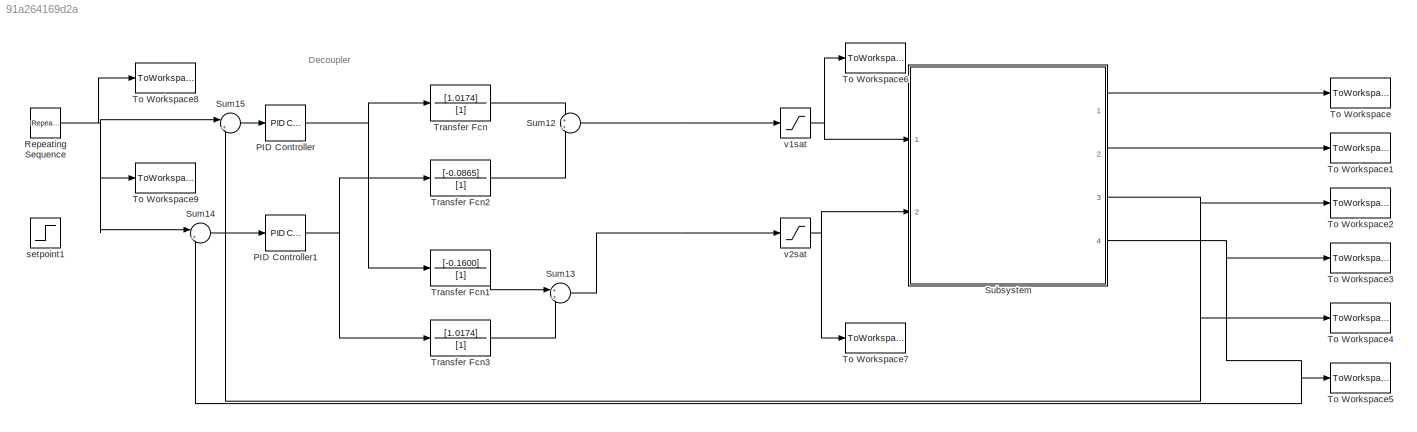
MODEL slx_91a264169d2a
KIND model
CONFIG AbsTol = auto
CONFIG FixedStep = 0.0005
CONFIG MaxStep = auto
CONFIG MinStep = auto
CONFIG RelTol = 1e-3
CONFIG SampleTimeConstraint = Unconstrained
CONFIG Solver = FixedStepAuto
CONFIG SolverMode = Auto
CONFIG SolverName = FixedStepAuto
CONFIG StartTime = 0.0
CONFIG StopTime = 300
BLOCK [Reference] PID Controller  REF=simulink/Continuous/PID Controller
  Ports = [1, 1]
  SourceBlock = simulink/Continuous/PID Controller
  SourceType = PID 1dof
BLOCK [Reference] PID Controller1  REF=simulink/Continuous/PID Controller
  Ports = [1, 1]
  SourceBlock = simulink/Continuous/PID Controller
  SourceType = PID 1dof
BLOCK [Reference] Repeating Sequence  REF=simulink/Sources/Repeating
Sequence
  Ports = [0, 1]
  SourceBlock = simulink/Sources/Repeating\nSequence
  SourceType = Repeating table
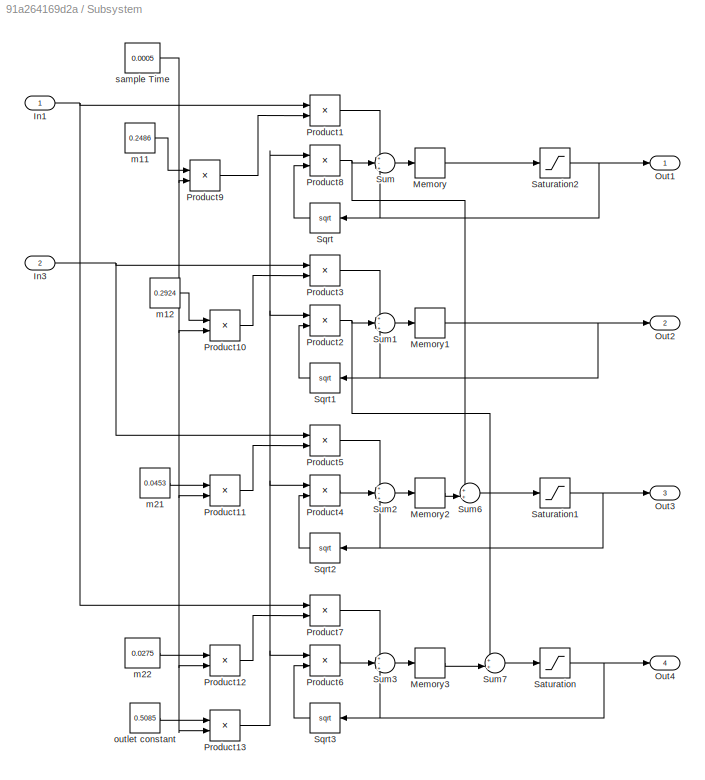
BLOCK [SubSystem] Subsystem
  Ports = [2, 4]
  RequestExecContextInheritance = off
  Variant = off
BLOCK [Inport] Subsystem/In1
  IconDisplay = Port number
BLOCK [Inport] Subsystem/In3
  IconDisplay = Port number
  Port = 2
BLOCK [Memory] Subsystem/Memory
BLOCK [Memory] Subsystem/Memory1
BLOCK [Memory] Subsystem/Memory2
BLOCK [Memory] Subsystem/Memory3
BLOCK [Outport] Subsystem/Out1
  IconDisplay = Port number
BLOCK [Outport] Subsystem/Out2
  IconDisplay = Port number
  Port = 2
BLOCK [Outport] Subsystem/Out3
  IconDisplay = Port number
  Port = 3
BLOCK [Outport] Subsystem/Out4
  IconDisplay = Port number
  Port = 4
BLOCK [Product] Subsystem/Product1
  InputSameDT = off
  OutDataTypeStr = Inherit: Inherit via internal rule
  Ports = [2, 1]
  RndMeth = Floor
  SaturateOnIntegerOverflow = off
BLOCK [Product] Subsystem/Product10
  InputSameDT = off
  OutDataTypeStr = Inherit: Inherit via internal rule
  Ports = [2, 1]
  RndMeth = Floor
  SaturateOnIntegerOverflow = off
BLOCK [Product] Subsystem/Product11
  InputSameDT = off
  OutDataTypeStr = Inherit: Inherit via internal rule
  Ports = [2, 1]
  RndMeth = Floor
  SaturateOnIntegerOverflow = off
BLOCK [Product] Subsystem/Product12
  InputSameDT = off
  OutDataTypeStr = Inherit: Inherit via internal rule
  Ports = [2, 1]
  RndMeth = Floor
  SaturateOnIntegerOverflow = off
BLOCK [Product] Subsystem/Product13
  InputSameDT = off
  OutDataTypeStr = Inherit: Inherit via internal rule
  Ports = [2, 1]
  RndMeth = Floor
  SaturateOnIntegerOverflow = off
BLOCK [Product] Subsystem/Product2
  InputSameDT = off
  OutDataTypeStr = Inherit: Inherit via internal rule
  Ports = [2, 1]
  RndMeth = Floor
  SaturateOnIntegerOverflow = off
BLOCK [Product] Subsystem/Product3
  InputSameDT = off
  OutDataTypeStr = Inherit: Inherit via internal rule
  Ports = [2, 1]
  RndMeth = Floor
  SaturateOnIntegerOverflow = off
BLOCK [Product] Subsystem/Product4
  InputSameDT = off
  OutDataTypeStr = Inherit: Inherit via internal rule
  Ports = [2, 1]
  RndMeth = Floor
  SaturateOnIntegerOverflow = off
BLOCK [Product] Subsystem/Product5
  InputSameDT = off
  OutDataTypeStr = Inherit: Inherit via internal rule
  Ports = [2, 1]
  RndMeth = Floor
  SaturateOnIntegerOverflow = off
BLOCK [Product] Subsystem/Product6
  InputSameDT = off
  OutDataTypeStr = Inherit: Inherit via internal rule
  Ports = [2, 1]
  RndMeth = Floor
  SaturateOnIntegerOverflow = off
BLOCK [Product] Subsystem/Product7
  InputSameDT = off
  OutDataTypeStr = Inherit: Inherit via internal rule
  Ports = [2, 1]
  RndMeth = Floor
  SaturateOnIntegerOverflow = off
BLOCK [Product] Subsystem/Product8
  InputSameDT = off
  OutDataTypeStr = Inherit: Inherit via internal rule
  Ports = [2, 1]
  RndMeth = Floor
  SaturateOnIntegerOverflow = off
BLOCK [Product] Subsystem/Product9
  InputSameDT = off
  OutDataTypeStr = Inherit: Inherit via internal rule
  Ports = [2, 1]
  RndMeth = Floor
  SaturateOnIntegerOverflow = off
BLOCK [Saturate] Subsystem/Saturation
  InputPortMap = u0
  LowerLimit = 0
  Ports = [1, 1]
  UpperLimit = 30
BLOCK [Saturate] Subsystem/Saturation1
  InputPortMap = u0
  LowerLimit = 0
  Ports = [1, 1]
  UpperLimit = 30
BLOCK [Saturate] Subsystem/Saturation2
  InputPortMap = u0
  LowerLimit = 0
  Ports = [1, 1]
  UpperLimit = 30
BLOCK [Sqrt] Subsystem/Sqrt
BLOCK [Sqrt] Subsystem/Sqrt1
BLOCK [Sqrt] Subsystem/Sqrt2
BLOCK [Sqrt] Subsystem/Sqrt3
BLOCK [Sum] Subsystem/Sum
  IconShape = round
  InputSameDT = off
  Inputs = +-+
  OutDataTypeStr = Inherit: Inherit via internal rule
  Ports = [3, 1]
  SaturateOnIntegerOverflow = off
BLOCK [Sum] Subsystem/Sum1
  IconShape = round
  InputSameDT = off
  Inputs = +-+
  OutDataTypeStr = Inherit: Inherit via internal rule
  Ports = [3, 1]
  SaturateOnIntegerOverflow = off
BLOCK [Sum] Subsystem/Sum2
  IconShape = round
  InputSameDT = off
  Inputs = +-+
  OutDataTypeStr = Inherit: Inherit via internal rule
  Ports = [3, 1]
  SaturateOnIntegerOverflow = off
BLOCK [Sum] Subsystem/Sum3
  IconShape = round
  InputSameDT = off
  Inputs = +-+
  OutDataTypeStr = Inherit: Inherit via internal rule
  Ports = [3, 1]
  SaturateOnIntegerOverflow = off
BLOCK [Sum] Subsystem/Sum6
  IconShape = round
  InputSameDT = off
  Inputs = ++|
  OutDataTypeStr = Inherit: Inherit via internal rule
  Ports = [2, 1]
  SaturateOnIntegerOverflow = off
BLOCK [Sum] Subsystem/Sum7
  IconShape = round
  InputSameDT = off
  Inputs = ++|
  OutDataTypeStr = Inherit: Inherit via internal rule
  Ports = [2, 1]
  SaturateOnIntegerOverflow = off
BLOCK [Constant] Subsystem/m11
  Value = 0.2486
BLOCK [Constant] Subsystem/m12
  Value = 0.2924
BLOCK [Constant] Subsystem/m21
  Value = 0.0453
BLOCK [Constant] Subsystem/m22
  Value = 0.0275
BLOCK [Constant] Subsystem/outlet constant
  Value = 0.5085
BLOCK [Constant] Subsystem/sample Time
  Value = 0.0005
BLOCK [Sum] Sum12
  IconShape = round
  InputSameDT = off
  OutDataTypeStr = Inherit: Inherit via internal rule
  Ports = [2, 1]
  SaturateOnIntegerOverflow = off
BLOCK [Sum] Sum13
  IconShape = round
  InputSameDT = off
  OutDataTypeStr = Inherit: Inherit via internal rule
  Ports = [2, 1]
  SaturateOnIntegerOverflow = off
BLOCK [Sum] Sum14
  IconShape = round
  InputSameDT = off
  Inputs = |+-
  OutDataTypeStr = Inherit: Inherit via internal rule
  Ports = [2, 1]
  SaturateOnIntegerOverflow = off
BLOCK [Sum] Sum15
  IconShape = round
  InputSameDT = off
  Inputs = |+-
  OutDataTypeStr = Inherit: Inherit via internal rule
  Ports = [2, 1]
  SaturateOnIntegerOverflow = off
BLOCK [ToWorkspace] To Workspace
  FixptAsFi = on
  MaxDataPoints = inf
  Ports = [1]
  SampleTime = -1
  Save2DSignal = 3-D array (concatenate along third dimension)
  SaveFormat = Timeseries
  VariableName = tank11
BLOCK [ToWorkspace] To Workspace1
  FixptAsFi = on
  MaxDataPoints = inf
  Ports = [1]
  SampleTime = -1
  Save2DSignal = 3-D array (concatenate along third dimension)
  SaveFormat = Timeseries
  VariableName = tank12
BLOCK [ToWorkspace] To Workspace2
  FixptAsFi = on
  MaxDataPoints = inf
  Ports = [1]
  SampleTime = -1
  Save2DSignal = 3-D array (concatenate along third dimension)
  SaveFormat = Timeseries
  VariableName = tank21
BLOCK [ToWorkspace] To Workspace3
  FixptAsFi = on
  MaxDataPoints = inf
  Ports = [1]
  SampleTime = -1
  Save2DSignal = 3-D array (concatenate along third dimension)
  SaveFormat = Timeseries
  VariableName = tank22
BLOCK [ToWorkspace] To Workspace4
  FixptAsFi = on
  MaxDataPoints = inf
  Ports = [1]
  SampleTime = -1
  Save2DSignal = 3-D array (concatenate along third dimension)
  SaveFormat = Timeseries
  VariableName = output1
BLOCK [ToWorkspace] To Workspace5
  FixptAsFi = on
  MaxDataPoints = inf
  Ports = [1]
  SampleTime = -1
  Save2DSignal = 3-D array (concatenate along third dimension)
  SaveFormat = Timeseries
  VariableName = output2
BLOCK [ToWorkspace] To Workspace6
  FixptAsFi = on
  MaxDataPoints = inf
  Ports = [1]
  SampleTime = -1
  Save2DSignal = 3-D array (concatenate along third dimension)
  SaveFormat = Timeseries
  VariableName = voltage1
BLOCK [ToWorkspace] To Workspace7
  FixptAsFi = on
  MaxDataPoints = inf
  Ports = [1]
  SampleTime = -1
  Save2DSignal = 3-D array (concatenate along third dimension)
  SaveFormat = Timeseries
  VariableName = voltage2
BLOCK [ToWorkspace] To Workspace8
  FixptAsFi = on
  MaxDataPoints = inf
  Ports = [1]
  SampleTime = -1
  Save2DSignal = 3-D array (concatenate along third dimension)
  SaveFormat = Timeseries
  VariableName = setpoint1
BLOCK [ToWorkspace] To Workspace9
  FixptAsFi = on
  MaxDataPoints = inf
  Ports = [1]
  SampleTime = -1
  Save2DSignal = 3-D array (concatenate along third dimension)
  SaveFormat = Timeseries
  VariableName = setpoint2
BLOCK [TransferFcn] Transfer Fcn
  Denominator = [1]
  Numerator = [1.0174]
BLOCK [TransferFcn] Transfer Fcn1
  Denominator = [1]
  Numerator = [-0.1600]
BLOCK [TransferFcn] Transfer Fcn2
  Denominator = [1]
  Numerator = [-0.0865]
BLOCK [TransferFcn] Transfer Fcn3
  Denominator = [1]
  Numerator = [1.0174]
BLOCK [Step] setpoint1
  After = 26.55
  Before = 22.5
  SampleTime = 0
BLOCK [Saturate] v1sat
  InputPortMap = u0
  LowerLimit = 0
  Ports = [1, 1]
  UpperLimit = 12
BLOCK [Saturate] v2sat
  InputPortMap = u0
  LowerLimit = 0
  Ports = [1, 1]
  UpperLimit = 12
ANNOTATION (root): Decoupler
NET PID Controller1:1 -> Transfer Fcn2:1, Transfer Fcn3:1
NET PID Controller:1 -> Transfer Fcn1:1, Transfer Fcn:1
NET Repeating Sequence:1 -> Sum14:1, Sum15:1, To Workspace8:1, To Workspace9:1
NET Subsystem/In1:1 -> Subsystem/Product1:1, Subsystem/Product7:1
NET Subsystem/In3:1 -> Subsystem/Product3:1, Subsystem/Product5:1
NET Subsystem/Memory1:1 -> Subsystem/Out2:1, Subsystem/Sqrt1:1, Subsystem/Sum1:3
LINE Subsystem/Memory2:1 -> Subsystem/Sum6:2
LINE Subsystem/Memory3:1 -> Subsystem/Sum7:2
LINE Subsystem/Memory:1 -> Subsystem/Saturation2:1
LINE Subsystem/Product10:1 -> Subsystem/Product3:2
LINE Subsystem/Product11:1 -> Subsystem/Product5:2
LINE Subsystem/Product12:1 -> Subsystem/Product7:2
NET Subsystem/Product13:1 -> Subsystem/Product2:1, Subsystem/Product4:1, Subsystem/Product6:1, Subsystem/Product8:1
LINE Subsystem/Product1:1 -> Subsystem/Sum:1
NET Subsystem/Product2:1 -> Subsystem/Sum1:2, Subsystem/Sum7:1
LINE Subsystem/Product3:1 -> Subsystem/Sum1:1
LINE Subsystem/Product4:1 -> Subsystem/Sum2:2
LINE Subsystem/Product5:1 -> Subsystem/Sum2:1
LINE Subsystem/Product6:1 -> Subsystem/Sum3:2
LINE Subsystem/Product7:1 -> Subsystem/Sum3:1
NET Subsystem/Product8:1 -> Subsystem/Sum6:1, Subsystem/Sum:2
LINE Subsystem/Product9:1 -> Subsystem/Product1:2
NET Subsystem/Saturation1:1 -> Subsystem/Out3:1, Subsystem/Sqrt2:1, Subsystem/Sum2:3
NET Subsystem/Saturation2:1 -> Subsystem/Out1:1, Subsystem/Sqrt:1, Subsystem/Sum:3
NET Subsystem/Saturation:1 -> Subsystem/Out4:1, Subsystem/Sqrt3:1, Subsystem/Sum3:3
LINE Subsystem/Sqrt1:1 -> Subsystem/Product2:2
LINE Subsystem/Sqrt2:1 -> Subsystem/Product4:2
LINE Subsystem/Sqrt3:1 -> Subsystem/Product6:2
LINE Subsystem/Sqrt:1 -> Subsystem/Product8:2
LINE Subsystem/Sum1:1 -> Subsystem/Memory1:1
LINE Subsystem/Sum2:1 -> Subsystem/Memory2:1
LINE Subsystem/Sum3:1 -> Subsystem/Memory3:1
LINE Subsystem/Sum6:1 -> Subsystem/Saturation1:1
LINE Subsystem/Sum7:1 -> Subsystem/Saturation:1
LINE Subsystem/Sum:1 -> Subsystem/Memory:1
LINE Subsystem/m11:1 -> Subsystem/Product9:1
LINE Subsystem/m12:1 -> Subsystem/Product10:1
LINE Subsystem/m21:1 -> Subsystem/Product11:1
LINE Subsystem/m22:1 -> Subsystem/Product12:1
LINE Subsystem/outlet constant:1 -> Subsystem/Product13:1
NET Subsystem/sample Time:1 -> Subsystem/Product10:2, Subsystem/Product11:2, Subsystem/Product12:2, Subsystem/Product13:2, Subsystem/Product9:2
LINE Subsystem:1 -> To Workspace:1
LINE Subsystem:2 -> To Workspace1:1
NET Subsystem:3 -> Sum15:2, To Workspace2:1, To Workspace4:1
NET Subsystem:4 -> Sum14:2, To Workspace3:1, To Workspace5:1
LINE Sum12:1 -> v1sat:1
LINE Sum13:1 -> v2sat:1
LINE Sum14:1 -> PID Controller1:1
LINE Sum15:1 -> PID Controller:1
LINE Transfer Fcn1:1 -> Sum13:1
LINE Transfer Fcn2:1 -> Sum12:2
LINE Transfer Fcn3:1 -> Sum13:2
LINE Transfer Fcn:1 -> Sum12:1
NET v1sat:1 -> Subsystem:1, To Workspace6:1
NET v2sat:1 -> Subsystem:2, To Workspace7:1
note: NET lines group one-source signal fan-out (src -> all destinations, sorted); 1:1 wires keep LINE
